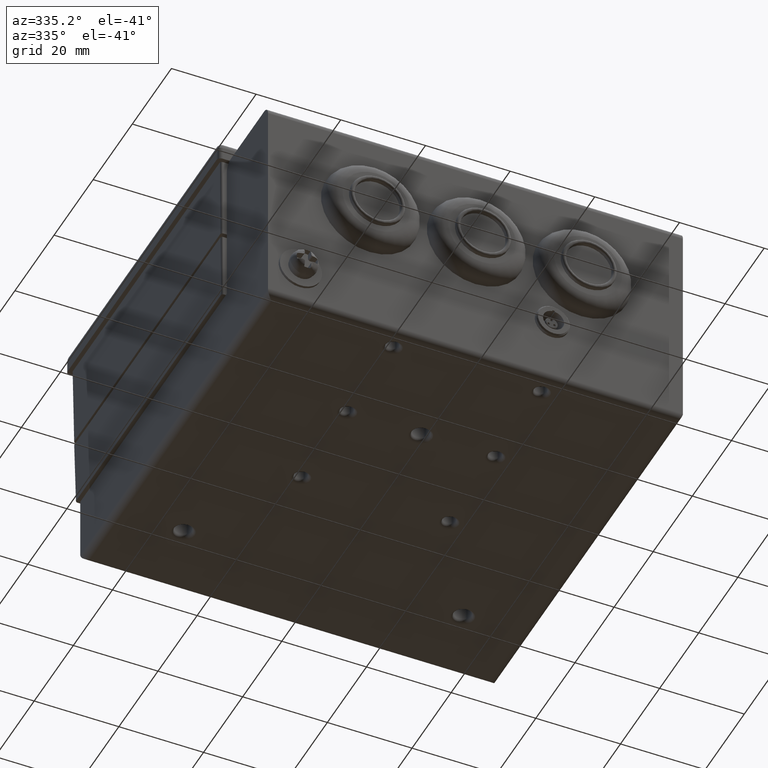
[diagram: clean part render]
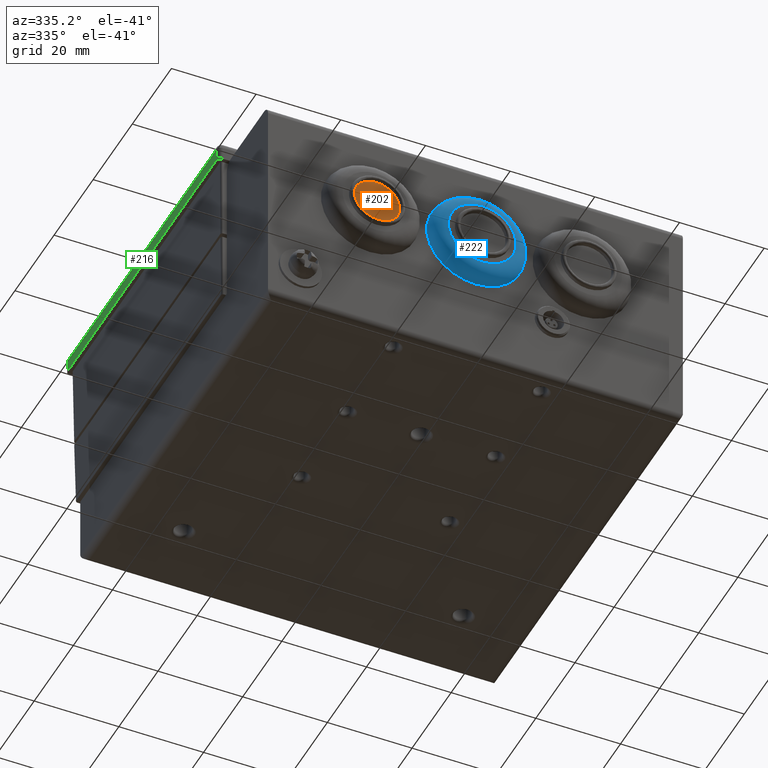
[diagram: same view with three faces highlighted in distinct colors, each labeled with its STEP entity id]
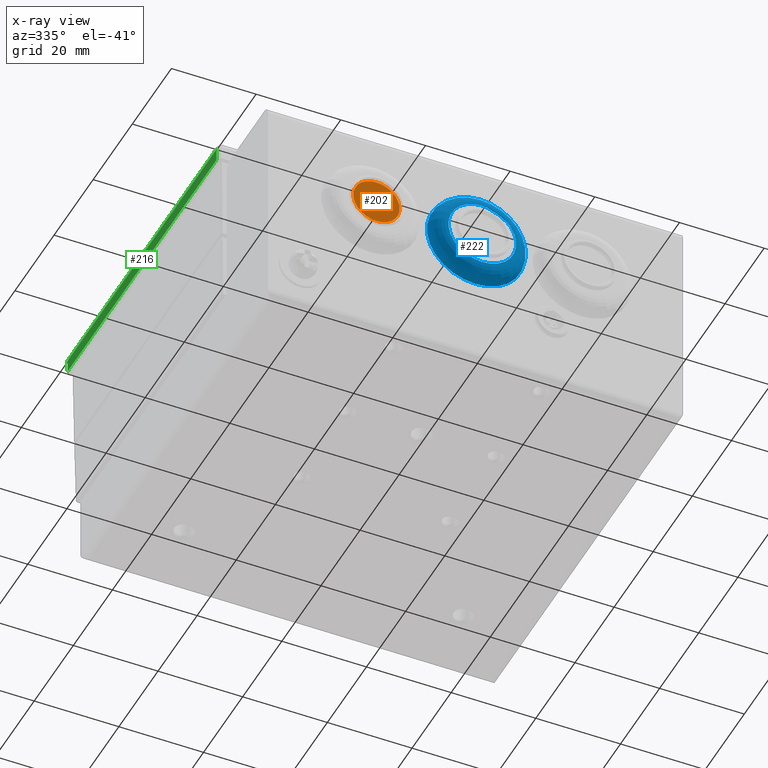
[diagram: x-ray of the same camera — body ghosted, the three highlighted faces saturated]
A machine part, auxiliary view with three faces highlighted in distinct colors.
The next image is the same camera in x-ray (body ghosted, the three faces saturated) — at least one of them is partly hidden behind the body in this view.
Their STEP definitions:

[orange] entity #202 — the highlighted planar face has unit normal (0, -1, -0).
#202 = ADVANCED_FACE( '', ( #539 ), #540, .T. );
#539 = FACE_OUTER_BOUND( '', #1069, .T. );
#540 = PLANE( '', #1070 );
#1069 = EDGE_LOOP( '', ( #2215 ) );
#1070 = AXIS2_PLACEMENT_3D( '', #2216, #2217, #2218 );
#2215 = ORIENTED_EDGE( '', *, *, #3348, .F. );
#2216 = CARTESIAN_POINT( '', ( -25.0000000000000, -62.4999999999919, -32.0000000000031 ) );
#2217 = DIRECTION( '', ( 1.83690953073289E-016, -1.00000000000000, -5.54450665274108E-013 ) );
#2218 = DIRECTION( '', ( 0.000000000000000, 5.54450665274108E-013, -1.00000000000000 ) );
#3348 = EDGE_CURVE( '', #3838, #3838, #3839, .T. );
#3838 = VERTEX_POINT( '', #4520 );
#3839 = CIRCLE( '', #4521, 5.50000000000116 );
#4520 = CARTESIAN_POINT( '', ( -25.0000000000000, -62.4999999999996, -21.0000000000008 ) );
#4521 = AXIS2_PLACEMENT_3D( '', #5346, #5347, #5348 );
#5346 = CARTESIAN_POINT( '', ( -25.0000000000000, -62.4999999999965, -26.5000000000019 ) );
#5347 = DIRECTION( '', ( -1.83690953073289E-016, 1.00000000000000, 5.54450665274109E-013 ) );
#5348 = DIRECTION( '', ( 0.000000000000000, -5.54450665274108E-013, 1.00000000000000 ) );

[blue] entity #222 — the highlighted toroidal blend (fillet) surface has major radius 8 mm and minor (blend) radius 3.5 mm.
#222 = ADVANCED_FACE( '', ( #572, #573 ), #574, .T. );
#572 = FACE_OUTER_BOUND( '', #1102, .T. );
#573 = FACE_OUTER_BOUND( '', #1103, .T. );
#574 = TOROIDAL_SURFACE( '', #1104, 7.99999999999696, 3.50000000000000 );
#1102 = EDGE_LOOP( '', ( #2291 ) );
#1103 = EDGE_LOOP( '', ( #2292 ) );
#1104 = AXIS2_PLACEMENT_3D( '', #2293, #2294, #2295 );
#2291 = ORIENTED_EDGE( '', *, *, #3391, .T. );
#2292 = ORIENTED_EDGE( '', *, *, #3392, .T. );
#2293 = CARTESIAN_POINT( '', ( -2.42861286636753E-014, -58.9999999999887, -26.5000000000000 ) );
#2294 = DIRECTION( '', ( -1.83690953073289E-016, 1.00000000000000, 5.54450665274108E-013 ) );
#2295 = DIRECTION( '', ( 0.000000000000000, -5.54450665274109E-013, 1.00000000000000 ) );
#3391 = EDGE_CURVE( '', #3912, #3912, #3913, .T. );
#3392 = EDGE_CURVE( '', #3914, #3914, #3915, .T. );
#3912 = VERTEX_POINT( '', #4617 );
#3913 = CIRCLE( '', #4618, 7.99999999999488 );
#3914 = VERTEX_POINT( '', #4619 );
#3915 = CIRCLE( '', #4620, 11.4999999999970 );
#4617 = CARTESIAN_POINT( '', ( -2.42861286636753E-014, -62.4999999999931, -18.5000000000071 ) );
#4618 = AXIS2_PLACEMENT_3D( '', #5399, #5400, #5401 );
#4619 = CARTESIAN_POINT( '', ( -2.42861286636753E-014, -59.0000000000000, -37.9999999999970 ) );
#4620 = AXIS2_PLACEMENT_3D( '', #5402, #5403, #5404 );
#5399 = CARTESIAN_POINT( '', ( -2.42861286636753E-014, -62.4999999999887, -26.5000000000020 ) );
#5400 = DIRECTION( '', ( -1.83690953073289E-016, 1.00000000000000, 5.54450665274109E-013 ) );
#5401 = DIRECTION( '', ( 0.000000000000000, -5.54450665274108E-013, 1.00000000000000 ) );
#5402 = CARTESIAN_POINT( '', ( -2.42861286636753E-014, -59.0000000000000, -26.5000000000000 ) );
#5403 = DIRECTION( '', ( 0.000000000000000, -1.00000000000000, 0.000000000000000 ) );
#5404 = DIRECTION( '', ( 0.000000000000000, 0.000000000000000, -1.00000000000000 ) );

[green] entity #216 — the highlighted planar face has unit normal (1, 0, 0).
#216 = ADVANCED_FACE( '', ( #563 ), #564, .F. );
#563 = FACE_OUTER_BOUND( '', #1093, .T. );
#564 = PLANE( '', #1094 );
#1093 = EDGE_LOOP( '', ( #2270, #2271, #2272, #2273 ) );
#1094 = AXIS2_PLACEMENT_3D( '', #2274, #2275, #2276 );
#2270 = ORIENTED_EDGE( '', *, *, #3379, .T. );
#2271 = ORIENTED_EDGE( '', *, *, #3380, .T. );
#2272 = ORIENTED_EDGE( '', *, *, #3381, .F. );
#2273 = ORIENTED_EDGE( '', *, *, #3382, .F. );
#2274 = CARTESIAN_POINT( '', ( -51.5000000000000, -38.0000000000000, -5.00000000000000 ) );
#2275 = DIRECTION( '', ( 1.00000000000000, 0.000000000000000, 0.000000000000000 ) );
#2276 = DIRECTION( '', ( 0.000000000000000, -1.00000000000000, 0.000000000000000 ) );
#3379 = EDGE_CURVE( '', #3891, #3892, #3893, .T. );
#3380 = EDGE_CURVE( '', #3892, #3894, #3895, .T. );
#3381 = EDGE_CURVE( '', #3896, #3894, #3897, .T. );
#3382 = EDGE_CURVE( '', #3891, #3896, #3898, .T. );
#3891 = VERTEX_POINT( '', #4588 );
#3892 = VERTEX_POINT( '', #4589 );
#3893 = LINE( '', #4590, #4591 );
#3894 = VERTEX_POINT( '', #4592 );
#3895 = LINE( '', #4593, #4594 );
#3896 = VERTEX_POINT( '', #4595 );
#3897 = LINE( '', #4596, #4597 );
#3898 = LINE( '', #4598, #4599 );
#4588 = CARTESIAN_POINT( '', ( -51.5000000000000, -38.0000000000000, -5.00000000000000 ) );
#4589 = CARTESIAN_POINT( '', ( -51.5000000000000, -38.0000000000000, -2.00000000000000 ) );
#4590 = CARTESIAN_POINT( '', ( -51.5000000000000, -38.0000000000000, -5.00000000000000 ) );
#4591 = VECTOR( '', #5388, 1000.00000000000 );
#4592 = CARTESIAN_POINT( '', ( -51.5000000000000, 38.0000000000000, -2.00000000000000 ) );
#4593 = CARTESIAN_POINT( '', ( -51.5000000000000, -38.0000000000000, -2.00000000000000 ) );
#4594 = VECTOR( '', #5389, 1000.00000000000 );
#4595 = CARTESIAN_POINT( '', ( -51.5000000000000, 38.0000000000000, -5.00000000000000 ) );
#4596 = CARTESIAN_POINT( '', ( -51.5000000000000, 38.0000000000000, -5.00000000000000 ) );
#4597 = VECTOR( '', #5390, 1000.00000000000 );
#4598 = CARTESIAN_POINT( '', ( -51.5000000000000, -38.0000000000000, -5.00000000000000 ) );
#4599 = VECTOR( '', #5391, 1000.00000000000 );
#5388 = DIRECTION( '', ( -0.000000000000000, -0.000000000000000, 1.00000000000000 ) );
#5389 = DIRECTION( '', ( -0.000000000000000, 1.00000000000000, 0.000000000000000 ) );
#5390 = DIRECTION( '', ( -0.000000000000000, -0.000000000000000, 1.00000000000000 ) );
#5391 = DIRECTION( '', ( 0.000000000000000, 1.00000000000000, 0.000000000000000 ) );